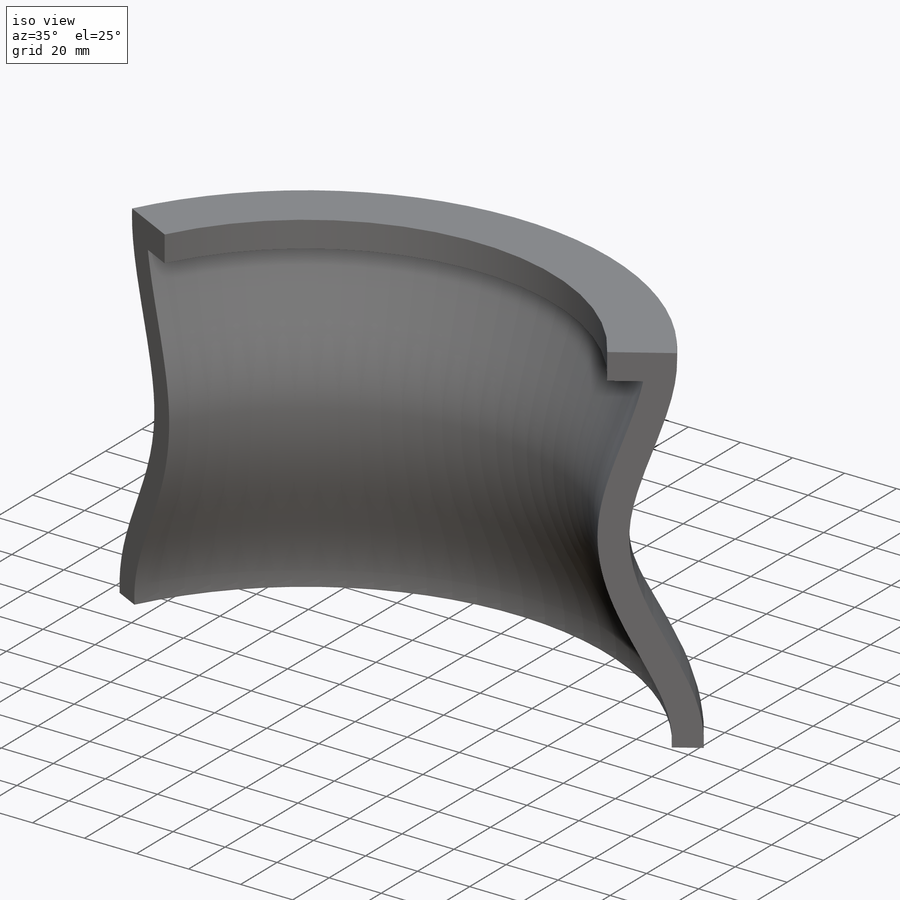
[diagram: iso view]
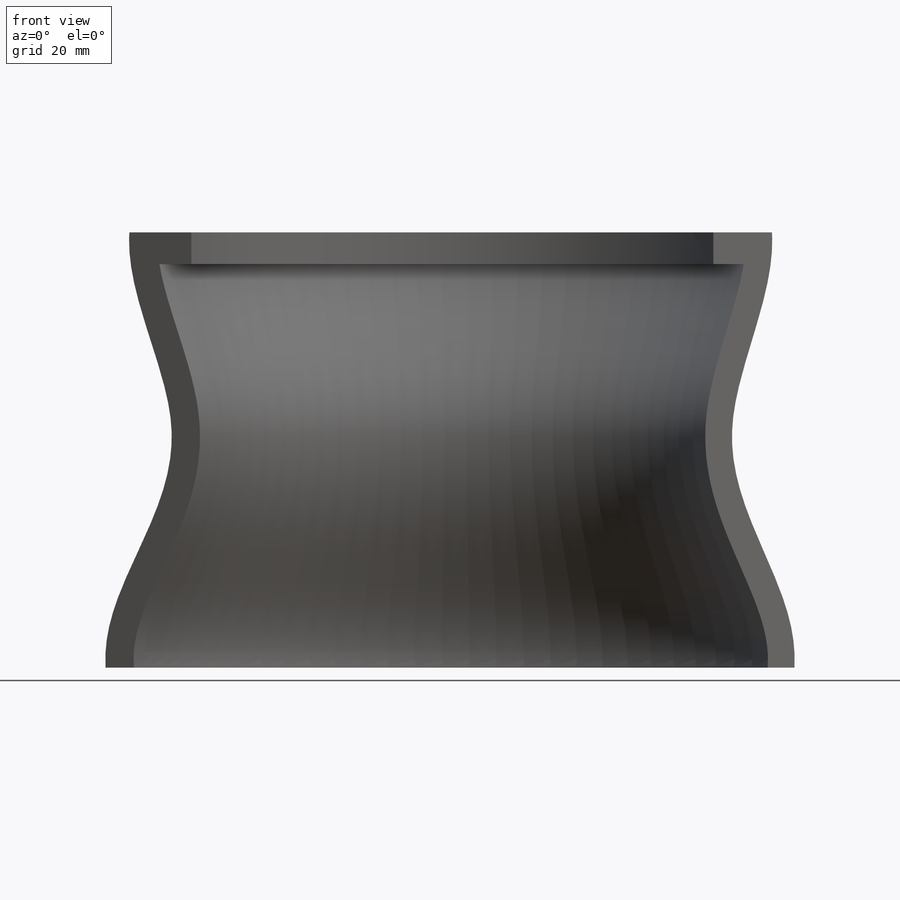
[diagram: front view]
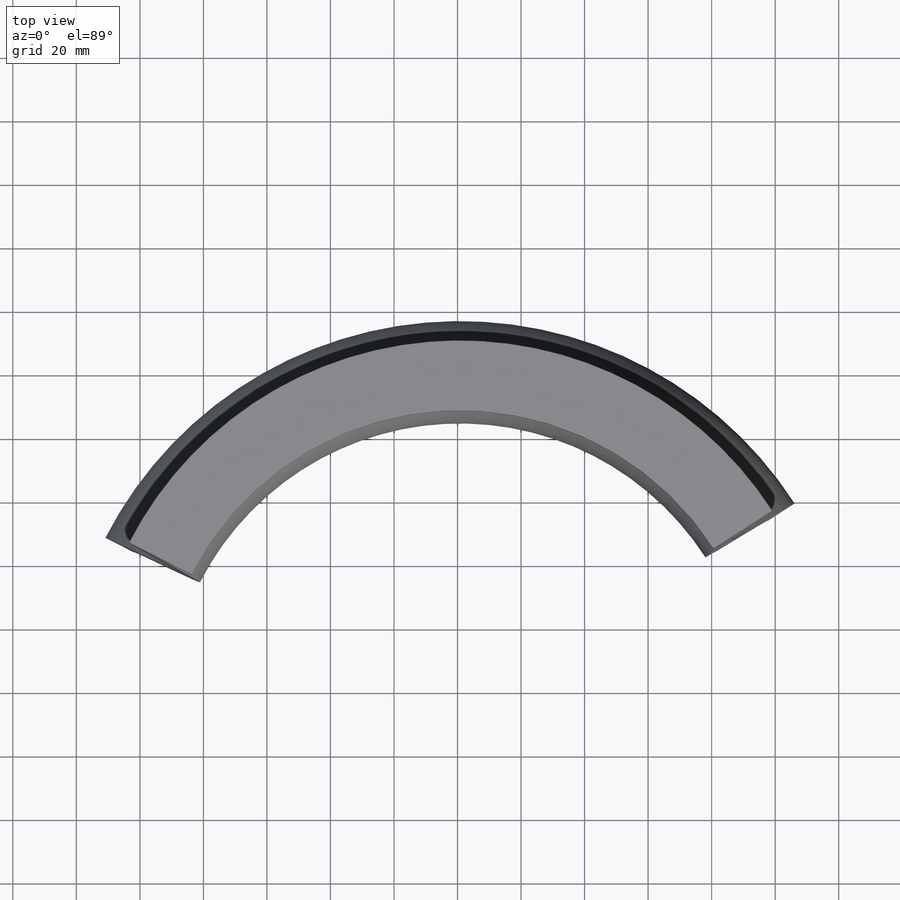
[diagram: top view]
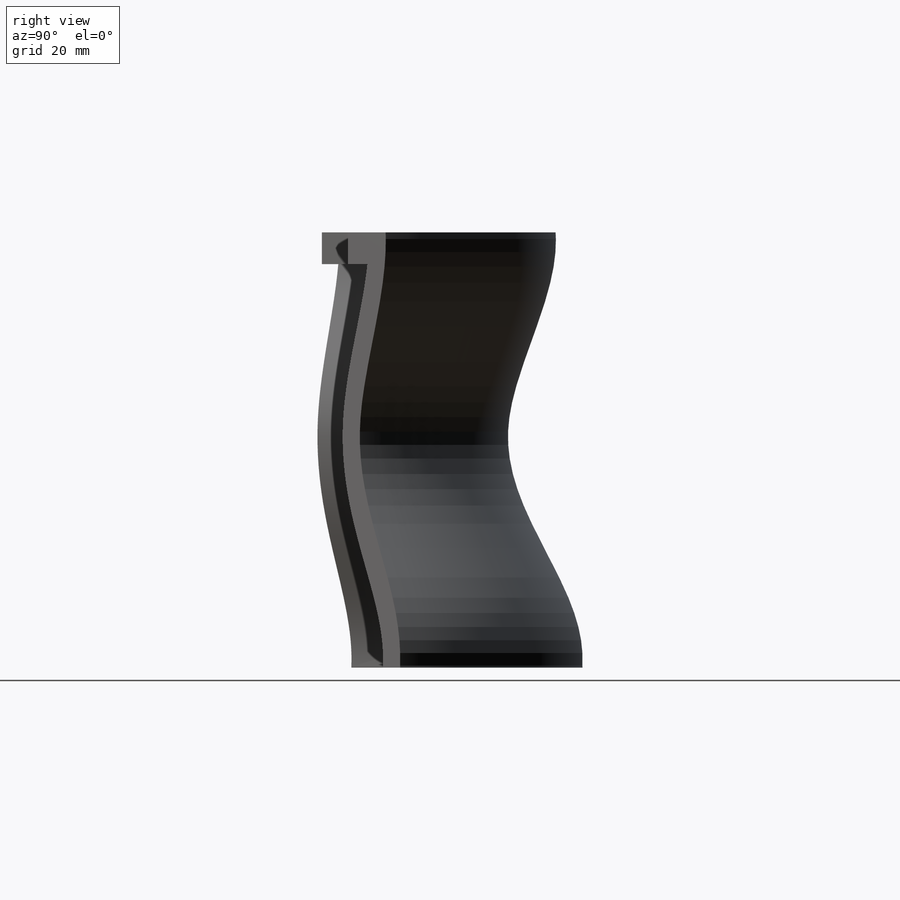
[diagram: right view]
SOLIDWORKS PART (.sldprt)
format: sldprt  version: not decoded by parser v0  size: 307,200 bytes
history: native  units: mm
features: sketch x7, cut_extrude x5, plane x4, material x1, revolve x1, shell x1 + 1 further entry (+8 scaffold rows collapsed)
feature tree (28):
  scaffold x8  (default folders/planes/origin — collapsed)
  material  "Matériau <non spécifié>"
  "Annotations"  RD1=282.687835mm RD2=250.756235mm
  plane  "Plan de face"
  plane  "Plan de dessus"
  plane  "Plan de droite"
  sketch  "Esquisse1"  dims[c1.D1=220.0mm c1.D2=220.0mm c1.D3=102.0mm c1.D8=~110.800474mm c1.D9=110.0mm c1.D12=~40.974847mm c1.D13=125.0mm c1.D14=125.0mm c1.D15=110.0mm c1.D18=110.0mm c2.D3=80.0mm c2.D2=~130.861563mm c2.D4=119.0mm c2.D5=90.0mm c2.D6=106.0mm c2.D7=54.0mm c2.D8=12.0deg c2.D10=53.0mm c2.D11=53.0mm c2.D12=~592.190852mm c3.D10=83.0mm c3.D11=40.0mm c4.D10=281.0mm c4.D11=83.0mm c4.D13=~281.000199mm c4.D12=59.0mm c4.D16=102.0mm c4.D17=~104.486931mm c4.D18=110.0mm]
  revolve  "Révolution2"  Angle=360deg
  sketch  "Esquisse2"  dims[c1.D1=~119.056829mm c2.D1=120.0deg c2.D2=~119.056829mm c3.D2=120.0deg]
  sketch  "Esquisse3"
  cut_extrude  "Enlèv. mat.-Extru.1"  Depth=410mm
  sketch  "Esquisse4"  dims[D1=104.0mm]
  cut_extrude  "Enlèv. mat.-Extru.2"  Depth=220mm
  plane  "Plan1"  Offset=200mm
  sketch  "Esquisse6"
  cut_extrude  "Enlèv. mat.-Extru.3"  Depth=40mm
  sketch  "Esquisse7"  dims[D1=137.0mm]
  cut_extrude  "Enlèv. mat.-Extru.4"  [1 undecoded]
  shell  "Coque2"  Thickness=10mm
  sketch  "Esquisse8"
  cut_extrude  "Enlèv. mat.-Extru.5"  [1 undecoded]
decode coverage: 9 of 14 modeling features carry decoded parameters; 1 rows unclassified (native names shown)
note: ~ marks probable driven/reference dimensions
note: 2 parameter values undecoded
note: suppression state not decoded; provenance and decode notes live in map.json
